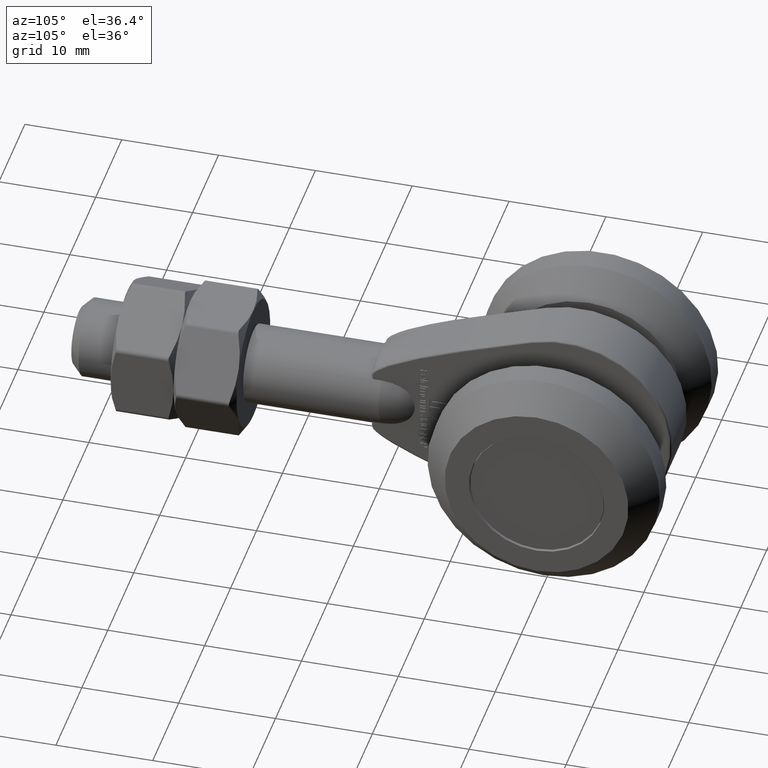
[diagram: clean part render]
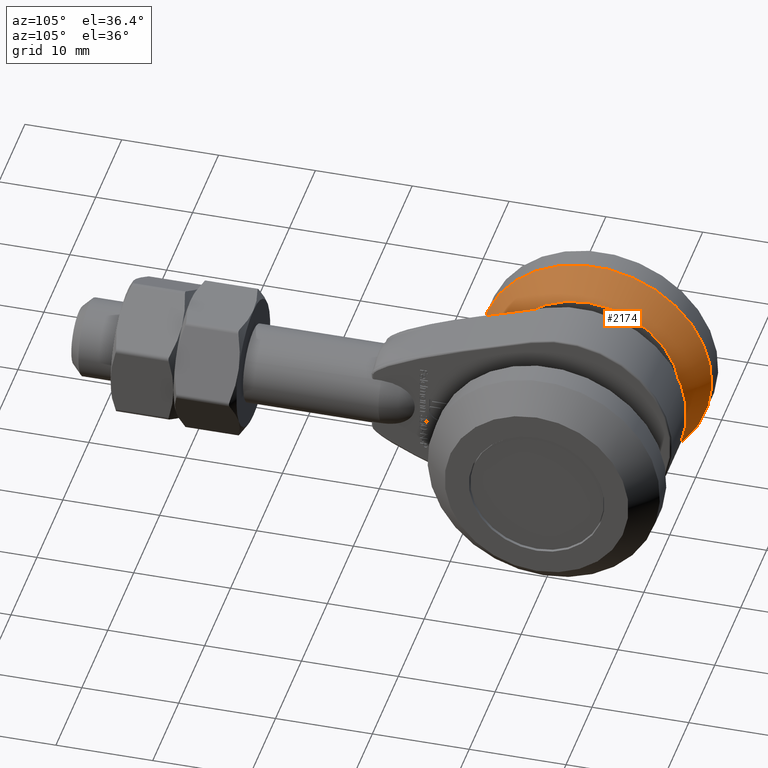
[diagram: same view with one face highlighted and labeled with its STEP entity id]
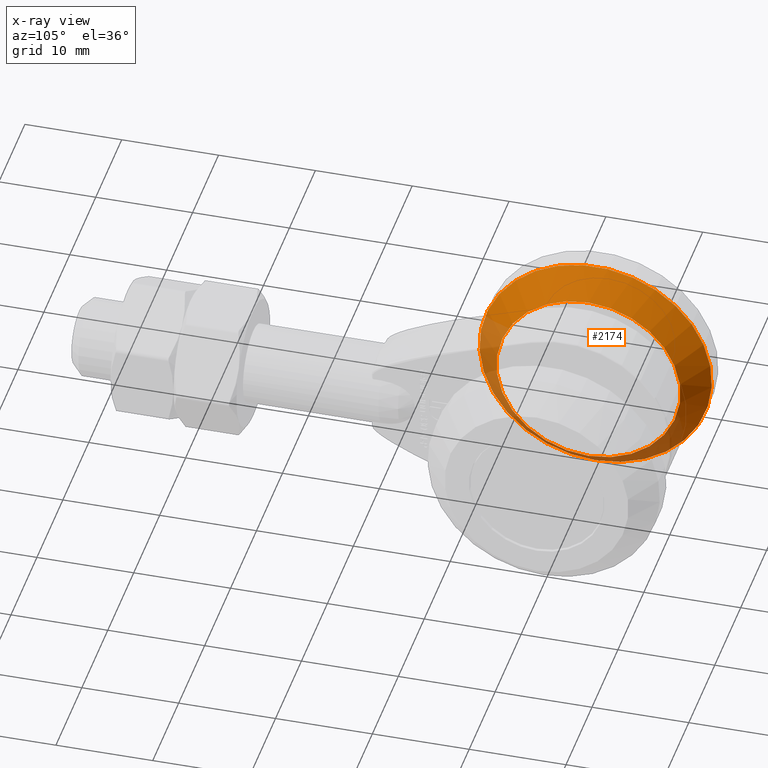
[diagram: x-ray of the same camera — body ghosted, the highlighted face saturated]
A machine part, auxiliary view. The second image highlights one B-rep face of the part: STEP entity #2174.
The next image is the same camera in x-ray: the body ghosted, the highlighted face saturated — about 20% of this face is hidden behind the body in this view.
In plain terms, the highlighted conical surface has half-angle 42.274 deg.
Its self-contained STEP definition (entity closure, byte-faithful):
#281 = DIRECTION ( 'NONE',  ( 0.000000000000000000, 0.000000000000000000, -1.000000000000000000 ) ) ;
#1237 = CARTESIAN_POINT ( 'NONE',  ( -8.749999999999998224, 20.00000000000000355, 0.000000000000000000 ) ) ;
#1836 = EDGE_CURVE ( 'NONE', #8193, #8193, #17020, .T. ) ;
#1876 = DIRECTION ( 'NONE',  ( 0.000000000000000000, 0.000000000000000000, -1.000000000000000000 ) ) ;
#2174 = ADVANCED_FACE ( 'NONE', ( #16336, #2225 ), #12643, .T. ) ;
#2225 = FACE_OUTER_BOUND ( 'NONE', #19921, .T. ) ;
#4674 = DIRECTION ( 'NONE',  ( 1.000000000000000000, -0.000000000000000000, -0.000000000000000000 ) ) ;
#5404 = EDGE_LOOP ( 'NONE', ( #25451 ) ) ;
#6754 = DIRECTION ( 'NONE',  ( 0.000000000000000000, 0.000000000000000000, -1.000000000000000000 ) ) ;
#7805 = EDGE_CURVE ( 'NONE', #14223, #14223, #24456, .T. ) ;
#7992 = CARTESIAN_POINT ( 'NONE',  ( -6.000000000000000888, 20.00000000000000355, -9.499999999999994671 ) ) ;
#8193 = VERTEX_POINT ( 'NONE', #7992 ) ;
#8467 = AXIS2_PLACEMENT_3D ( 'NONE', #17534, #4674, #6754 ) ;
#12643 = CONICAL_SURFACE ( 'NONE', #15635, 11.99999999999999645, 0.7378150601204660486 ) ;
#13929 = ORIENTED_EDGE ( 'NONE', *, *, #7805, .T. ) ;
#14223 = VERTEX_POINT ( 'NONE', #16413 ) ;
#14483 = AXIS2_PLACEMENT_3D ( 'NONE', #23863, #23672, #281 ) ;
#15635 = AXIS2_PLACEMENT_3D ( 'NONE', #1237, #22636, #1876 ) ;
#16336 = FACE_BOUND ( 'NONE', #5404, .T. ) ;
#16413 = CARTESIAN_POINT ( 'NONE',  ( -8.749999999999998224, 20.00000000000000355, -11.99999999999999645 ) ) ;
#17020 = CIRCLE ( 'NONE', #8467, 9.499999999999994671 ) ;
#17534 = CARTESIAN_POINT ( 'NONE',  ( -6.000000000000000888, 20.00000000000000355, 0.000000000000000000 ) ) ;
#19921 = EDGE_LOOP ( 'NONE', ( #13929 ) ) ;
#22636 = DIRECTION ( 'NONE',  ( -1.000000000000000000, 0.000000000000000000, 0.000000000000000000 ) ) ;
#23672 = DIRECTION ( 'NONE',  ( 1.000000000000000000, -0.000000000000000000, -0.000000000000000000 ) ) ;
#23863 = CARTESIAN_POINT ( 'NONE',  ( -8.749999999999998224, 20.00000000000000355, 0.000000000000000000 ) ) ;
#24456 = CIRCLE ( 'NONE', #14483, 11.99999999999999645 ) ;
#25451 = ORIENTED_EDGE ( 'NONE', *, *, #1836, .F. ) ;